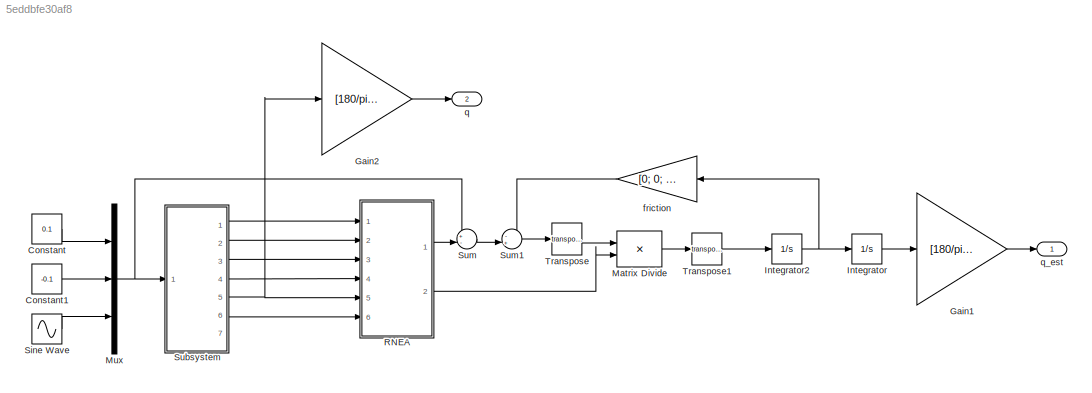
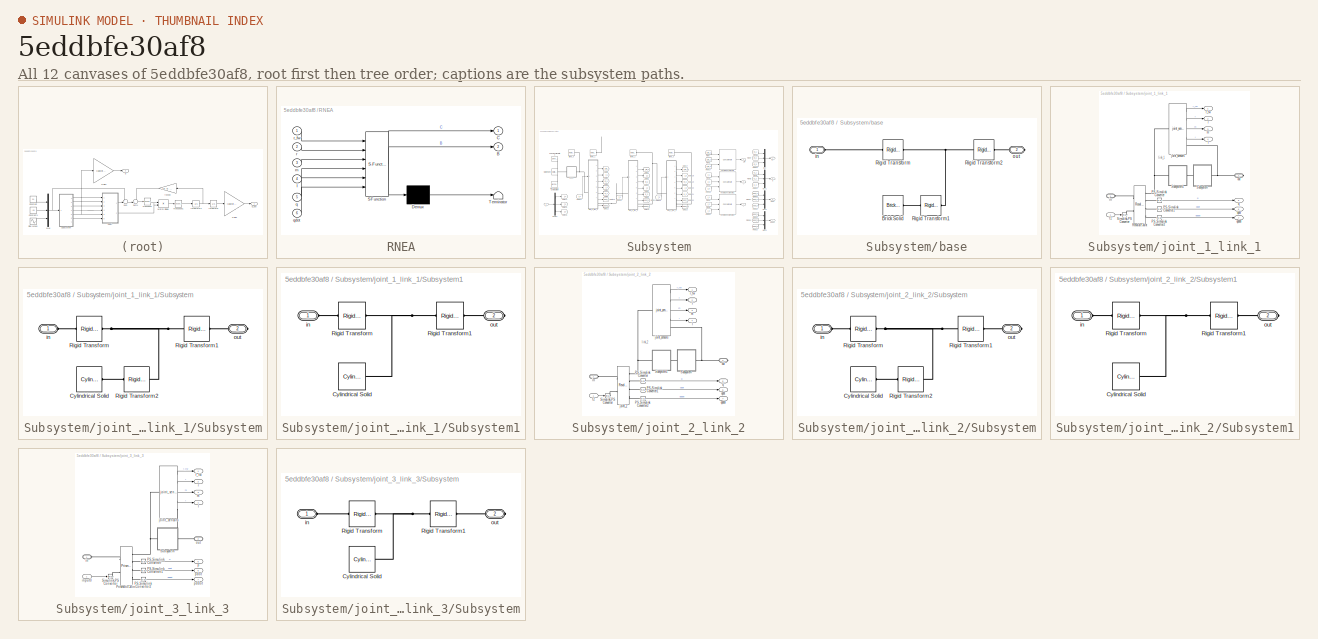
[diagram: thumbnail index - all 12 canvases of the model, root first then tree order]
MODEL slx_5eddbfe30af8
KIND model
CONFIG AbsTol = 1e-3
CONFIG EnableMultiTasking = on
CONFIG FixedStep = auto
CONFIG InitFcn = parameters;
CONFIG MaxStep = 0.01
CONFIG MinStep = auto
CONFIG RelTol = 1e-3
CONFIG SampleTimeConstraint = Unconstrained
CONFIG SolverName = VariableStepAuto
CONFIG StartTime = 0.0
CONFIG StopTime = 10.0
BLOCK [Constant] Constant
  Value = 0.1
BLOCK [Constant] Constant1
  Value = -0.1
BLOCK [Gain] Gain1
  Gain = [180/pi; 180/pi; 1]
BLOCK [Gain] Gain2
  Gain = [180/pi; 180/pi; 1]
BLOCK [Integrator] Integrator
  InitialCondition = [q1_init; q2_init; d3_init]
  Ports = [1, 1]
BLOCK [Integrator] Integrator2
  InitialCondition = [0; 0; 0]
  Ports = [1, 1]
BLOCK [Product] Matrix Divide
  Inputs = */
  Multiplication = Matrix(*)
  Ports = [2, 1]
BLOCK [Mux] Mux
  DisplayOption = bar
  Inputs = 3
  Ports = [3, 1]
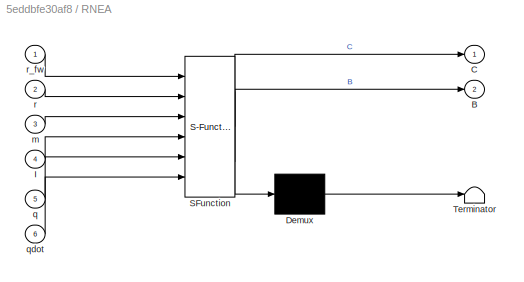
BLOCK [SubSystem] RNEA
  ErrorFcn = Stateflow.Translate.translate
  PermitHierarchicalResolution = ExplicitOnly
  Ports = [6, 2]
  RequestExecContextInheritance = off
  SFBlockType = MATLAB Function
  TreatAsAtomicUnit = on
BLOCK [Demux] RNEA/ Demux 
  Outputs = 1
  Ports = [1, 1]
BLOCK [S-Function] RNEA/ SFunction 
  EnableBusSupport = on
  FunctionName = sf_sfun
  Parameters = g
  PortCounts = [6 3]
  Ports = [6, 3]
  SFcnIsStateOwnerBlock = off
  SFunctionDeploymentMode = off
  Tag = Stateflow S-Function 1
BLOCK [Terminator] RNEA/ Terminator 
BLOCK [Outport] RNEA/B
  Port = 2
BLOCK [Outport] RNEA/C
BLOCK [Inport] RNEA/I
  Port = 4
BLOCK [Inport] RNEA/m
  Port = 3
BLOCK [Inport] RNEA/q
  Port = 5
BLOCK [Inport] RNEA/qdot
  Port = 6
BLOCK [Inport] RNEA/r
  Port = 2
BLOCK [Inport] RNEA/r_fw
BLOCK [Sin] Sine Wave
  Amplitude = 21/2
  Bias = 21
  Frequency = 6
  Ports = [0, 1]
  SampleTime = 0
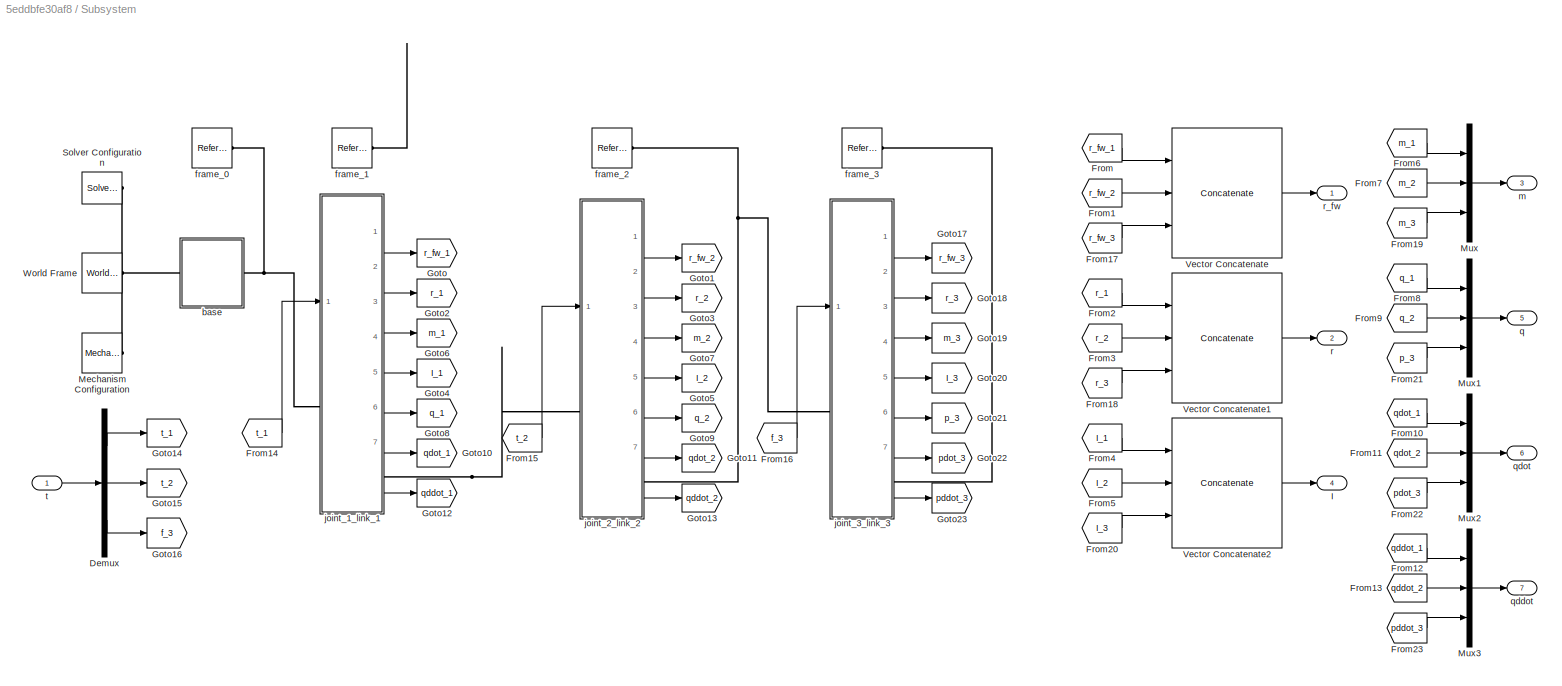
BLOCK [SubSystem] Subsystem
  Ports = [1, 7]
  RequestExecContextInheritance = off
BLOCK [Demux] Subsystem/Demux
  Outputs = 3
  Ports = [1, 3]
BLOCK [From] Subsystem/From
  GotoTag = r_fw_1
BLOCK [From] Subsystem/From1
  GotoTag = r_fw_2
BLOCK [From] Subsystem/From10
  GotoTag = qdot_1
BLOCK [From] Subsystem/From11
  GotoTag = qdot_2
BLOCK [From] Subsystem/From12
  GotoTag = qddot_1
BLOCK [From] Subsystem/From13
  GotoTag = qddot_2
BLOCK [From] Subsystem/From14
  GotoTag = t_1
BLOCK [From] Subsystem/From15
  GotoTag = t_2
BLOCK [From] Subsystem/From16
  GotoTag = f_3
BLOCK [From] Subsystem/From17
  GotoTag = r_fw_3
BLOCK [From] Subsystem/From18
  GotoTag = r_3
BLOCK [From] Subsystem/From19
  GotoTag = m_3
BLOCK [From] Subsystem/From2
  GotoTag = r_1
BLOCK [From] Subsystem/From20
  GotoTag = I_3
BLOCK [From] Subsystem/From21
  GotoTag = p_3
BLOCK [From] Subsystem/From22
  GotoTag = pdot_3
BLOCK [From] Subsystem/From23
  GotoTag = pddot_3
BLOCK [From] Subsystem/From3
  GotoTag = r_2
BLOCK [From] Subsystem/From4
  GotoTag = I_1
BLOCK [From] Subsystem/From5
  GotoTag = I_2
BLOCK [From] Subsystem/From6
  GotoTag = m_1
BLOCK [From] Subsystem/From7
  GotoTag = m_2
BLOCK [From] Subsystem/From8
  GotoTag = q_1
BLOCK [From] Subsystem/From9
  GotoTag = q_2
BLOCK [Goto] Subsystem/Goto
  GotoTag = r_fw_1
BLOCK [Goto] Subsystem/Goto1
  GotoTag = r_fw_2
BLOCK [Goto] Subsystem/Goto10
  GotoTag = qdot_1
BLOCK [Goto] Subsystem/Goto11
  GotoTag = qdot_2
BLOCK [Goto] Subsystem/Goto12
  GotoTag = qddot_1
BLOCK [Goto] Subsystem/Goto13
  GotoTag = qddot_2
BLOCK [Goto] Subsystem/Goto14
  GotoTag = t_1
BLOCK [Goto] Subsystem/Goto15
  GotoTag = t_2
BLOCK [Goto] Subsystem/Goto16
  GotoTag = f_3
BLOCK [Goto] Subsystem/Goto17
  GotoTag = r_fw_3
BLOCK [Goto] Subsystem/Goto18
  GotoTag = r_3
BLOCK [Goto] Subsystem/Goto19
  GotoTag = m_3
BLOCK [Goto] Subsystem/Goto2
  GotoTag = r_1
BLOCK [Goto] Subsystem/Goto20
  GotoTag = I_3
BLOCK [Goto] Subsystem/Goto21
  GotoTag = p_3
BLOCK [Goto] Subsystem/Goto22
  GotoTag = pdot_3
BLOCK [Goto] Subsystem/Goto23
  GotoTag = pddot_3
BLOCK [Goto] Subsystem/Goto3
  GotoTag = r_2
BLOCK [Goto] Subsystem/Goto4
  GotoTag = I_1
BLOCK [Goto] Subsystem/Goto5
  GotoTag = I_2
BLOCK [Goto] Subsystem/Goto6
  GotoTag = m_1
BLOCK [Goto] Subsystem/Goto7
  GotoTag = m_2
BLOCK [Goto] Subsystem/Goto8
  GotoTag = q_1
BLOCK [Goto] Subsystem/Goto9
  GotoTag = q_2
BLOCK [Outport] Subsystem/I
  Port = 4
BLOCK [Reference] Subsystem/Mechanism Configuration  REF=sm_lib/Utilities/Mechanism
Configuration
  Ports = [0, 0, 0, 0, 0, 0, 1]
  SourceBlock = sm_lib/Utilities/Mechanism\nConfiguration
  SourceProductBaseCode = MS
  SourceType = Mechanism\nConfiguration
BLOCK [Mux] Subsystem/Mux
  DisplayOption = bar
  Inputs = 3
  Ports = [3, 1]
BLOCK [Mux] Subsystem/Mux1
  DisplayOption = bar
  Inputs = 3
  Ports = [3, 1]
BLOCK [Mux] Subsystem/Mux2
  DisplayOption = bar
  Inputs = 3
  Ports = [3, 1]
BLOCK [Mux] Subsystem/Mux3
  DisplayOption = bar
  Inputs = 3
  Ports = [3, 1]
BLOCK [Reference] Subsystem/Solver Configuration  REF=nesl_utility/Solver
Configuration
  Ports = [0, 0, 0, 0, 0, 0, 1]
  SourceBlock = nesl_utility/Solver\nConfiguration
  SourceProductName = Utilities
  SourceType = Solver\nConfiguration
BLOCK [Concatenate] Subsystem/Vector Concatenate
  ConcatenateDimension = 2
  Mode = Multidimensional array
  NumInputs = 3
  Ports = [3, 1]
BLOCK [Concatenate] Subsystem/Vector Concatenate1
  ConcatenateDimension = 2
  Mode = Multidimensional array
  NumInputs = 3
  Ports = [3, 1]
BLOCK [Concatenate] Subsystem/Vector Concatenate2
  Mode = Multidimensional array
  NumInputs = 3
  Ports = [3, 1]
BLOCK [Reference] Subsystem/World Frame  REF=sm_lib/Frames and
Transforms/World Frame
  Ports = [0, 0, 0, 0, 0, 0, 1]
  SourceBlock = sm_lib/Frames and\nTransforms/World Frame
  SourceProductName = Multibody
  SourceType = World Frame
BLOCK [SubSystem] Subsystem/base
  Ports = [0, 0, 0, 0, 0, 1, 1]
  RequestExecContextInheritance = off
BLOCK [Reference] Subsystem/base/Brick Solid  REF=sm_lib/Body Elements/Brick Solid
  Ports = [0, 0, 0, 0, 0, 0, 1]
  SourceBlock = sm_lib/Body Elements/Brick Solid
  SourceProductBaseCode = MS
  SourceType = Brick Solid
BLOCK [Reference] Subsystem/base/Rigid Transform  REF=sm_lib/Frames and
Transforms/Rigid
Transform
  Ports = [0, 0, 0, 0, 0, 1, 1]
  SourceBlock = sm_lib/Frames and\nTransforms/Rigid\nTransform
  SourceProductBaseCode = MS
  SourceType = Rigid\nTransform
BLOCK [Reference] Subsystem/base/Rigid Transform1  REF=sm_lib/Frames and
Transforms/Rigid
Transform
  Ports = [0, 0, 0, 0, 0, 1, 1]
  SourceBlock = sm_lib/Frames and\nTransforms/Rigid\nTransform
  SourceProductBaseCode = MS
  SourceType = Rigid\nTransform
BLOCK [Reference] Subsystem/base/Rigid Transform2  REF=sm_lib/Frames and
Transforms/Rigid
Transform
  Ports = [0, 0, 0, 0, 0, 1, 1]
  SourceBlock = sm_lib/Frames and\nTransforms/Rigid\nTransform
  SourceProductBaseCode = MS
  SourceType = Rigid\nTransform
BLOCK [PMIOPort] Subsystem/base/in
  Side = Left
BLOCK [PMIOPort] Subsystem/base/out
  Port = 2
  Side = Right
BLOCK [Reference] Subsystem/frame_0  REF=sm_lib/Frames and
Transforms/Reference
Frame
  Ports = [0, 0, 0, 0, 0, 0, 1]
  SourceBlock = sm_lib/Frames and\nTransforms/Reference\nFrame
  SourceProductBaseCode = MS
  SourceType = Reference\nFrame
BLOCK [Reference] Subsystem/frame_1  REF=sm_lib/Frames and
Transforms/Reference
Frame
  Ports = [0, 0, 0, 0, 0, 0, 1]
  SourceBlock = sm_lib/Frames and\nTransforms/Reference\nFrame
  SourceProductBaseCode = MS
  SourceType = Reference\nFrame
BLOCK [Reference] Subsystem/frame_2  REF=sm_lib/Frames and
Transforms/Reference
Frame
  Ports = [0, 0, 0, 0, 0, 0, 1]
  SourceBlock = sm_lib/Frames and\nTransforms/Reference\nFrame
  SourceProductBaseCode = MS
  SourceType = Reference\nFrame
BLOCK [Reference] Subsystem/frame_3  REF=sm_lib/Frames and
Transforms/Reference
Frame
  Ports = [0, 0, 0, 0, 0, 0, 1]
  SourceBlock = sm_lib/Frames and\nTransforms/Reference\nFrame
  SourceProductBaseCode = MS
  SourceType = Reference\nFrame
BLOCK [SubSystem] Subsystem/joint_1_link_1
  PortSchema = {"entries":[{"content":{"sides":[{"content":{"connectorIds":["LConn1","In1"]},"type":"ConnectorPlacement.EquallySpacedRectSide","uuid":"eb1af6ed-9b87-46b9-8d3f-34ba78cb806b"},{"content":{"connectorIds":["RConn1","Out1","Out2","Out3","Out4","Out5","Out6","Out7"],"side":"RIGHT"},"type":"ConnectorPlacement.EquallySpacedRectSide","uuid":"1ba58fe6-d6b2-465a-832c-57fc388ac006"},{"content":{"connectorIds...<+444ch>
  Ports = [1, 7, 0, 0, 0, 1, 1]
  RequestExecContextInheritance = off
BLOCK [Outport] Subsystem/joint_1_link_1/I
  Port = 4
BLOCK [Reference] Subsystem/joint_1_link_1/PS-Simulink Converter  REF=nesl_utility/PS-Simulink
Converter
  Ports = [0, 1, 0, 0, 0, 1]
  SourceBlock = nesl_utility/PS-Simulink\nConverter
  SourceProductBaseCode = SS
  SourceType = PS-Simulink\nConverter
BLOCK [Reference] Subsystem/joint_1_link_1/PS-Simulink Converter1  REF=nesl_utility/PS-Simulink
Converter
  Ports = [0, 1, 0, 0, 0, 1]
  SourceBlock = nesl_utility/PS-Simulink\nConverter
  SourceProductBaseCode = SS
  SourceType = PS-Simulink\nConverter
BLOCK [Reference] Subsystem/joint_1_link_1/PS-Simulink Converter2  REF=nesl_utility/PS-Simulink
Converter
  Ports = [0, 1, 0, 0, 0, 1]
  SourceBlock = nesl_utility/PS-Simulink\nConverter
  SourceProductBaseCode = SS
  SourceType = PS-Simulink\nConverter
BLOCK [Reference] Subsystem/joint_1_link_1/Revolute Joint  REF=sm_lib/Joints/Revolute Joint
  Ports = [0, 0, 0, 0, 0, 2, 4]
  SourceBlock = sm_lib/Joints/Revolute Joint
  SourceProductBaseCode = MS
  SourceType = Revolute Joint
BLOCK [Reference] Subsystem/joint_1_link_1/Simulink-PS Converter  REF=nesl_utility/Simulink-PS
Converter
  Ports = [1, 0, 0, 0, 0, 0, 1]
  SourceBlock = nesl_utility/Simulink-PS\nConverter
  SourceProductBaseCode = SS
  SourceType = Simulink-PS\nConverter
BLOCK [SubSystem] Subsystem/joint_1_link_1/Subsystem
  Ports = [0, 0, 0, 0, 0, 1, 1]
  RequestExecContextInheritance = off
BLOCK [Reference] Subsystem/joint_1_link_1/Subsystem/Cylindrical Solid  REF=sm_lib/Body Elements/Cylindrical Solid
  Ports = [0, 0, 0, 0, 0, 0, 1]
  SourceBlock = sm_lib/Body Elements/Cylindrical Solid
  SourceProductBaseCode = MS
  SourceType = Cylindrical Solid
BLOCK [Reference] Subsystem/joint_1_link_1/Subsystem/Rigid Transform  REF=sm_lib/Frames and
Transforms/Rigid
Transform
  Ports = [0, 0, 0, 0, 0, 1, 1]
  SourceBlock = sm_lib/Frames and\nTransforms/Rigid\nTransform
  SourceProductBaseCode = MS
  SourceType = Rigid\nTransform
BLOCK [Reference] Subsystem/joint_1_link_1/Subsystem/Rigid Transform1  REF=sm_lib/Frames and
Transforms/Rigid
Transform
  Ports = [0, 0, 0, 0, 0, 1, 1]
  SourceBlock = sm_lib/Frames and\nTransforms/Rigid\nTransform
  SourceProductBaseCode = MS
  SourceType = Rigid\nTransform
BLOCK [Reference] Subsystem/joint_1_link_1/Subsystem/Rigid Transform2  REF=sm_lib/Frames and
Transforms/Rigid
Transform
  Ports = [0, 0, 0, 0, 0, 1, 1]
  SourceBlock = sm_lib/Frames and\nTransforms/Rigid\nTransform
  SourceProductBaseCode = MS
  SourceType = Rigid\nTransform
BLOCK [PMIOPort] Subsystem/joint_1_link_1/Subsystem/in
  Side = Left
BLOCK [PMIOPort] Subsystem/joint_1_link_1/Subsystem/out
  Port = 2
  Side = Right
BLOCK [SubSystem] Subsystem/joint_1_link_1/Subsystem1
  Ports = [0, 0, 0, 0, 0, 1, 1]
  RequestExecContextInheritance = off
BLOCK [Reference] Subsystem/joint_1_link_1/Subsystem1/Cylindrical Solid  REF=sm_lib/Body Elements/Cylindrical Solid
  Ports = [0, 0, 0, 0, 0, 0, 1]
  SourceBlock = sm_lib/Body Elements/Cylindrical Solid
  SourceProductBaseCode = MS
  SourceType = Cylindrical Solid
BLOCK [Reference] Subsystem/joint_1_link_1/Subsystem1/Rigid Transform  REF=sm_lib/Frames and
Transforms/Rigid
Transform
  Ports = [0, 0, 0, 0, 0, 1, 1]
  SourceBlock = sm_lib/Frames and\nTransforms/Rigid\nTransform
  SourceProductBaseCode = MS
  SourceType = Rigid\nTransform
BLOCK [Reference] Subsystem/joint_1_link_1/Subsystem1/Rigid Transform1  REF=sm_lib/Frames and
Transforms/Rigid
Transform
  Ports = [0, 0, 0, 0, 0, 1, 1]
  SourceBlock = sm_lib/Frames and\nTransforms/Rigid\nTransform
  SourceProductBaseCode = MS
  SourceType = Rigid\nTransform
BLOCK [PMIOPort] Subsystem/joint_1_link_1/Subsystem1/in
  Side = Left
BLOCK [PMIOPort] Subsystem/joint_1_link_1/Subsystem1/out
  Port = 2
  Side = Right
BLOCK [PMIOPort] Subsystem/joint_1_link_1/in
  Side = Left
BLOCK [Reference] Subsystem/joint_1_link_1/joint_sensors  REF=robot_arms_library/joint_sensors  (lib defined in slx_32957a7d959d)
  Ports = [0, 4, 0, 0, 0, 1, 1]
  SourceBlock = robot_arms_library/joint_sensors
BLOCK [Outport] Subsystem/joint_1_link_1/m
  Port = 3
BLOCK [PMIOPort] Subsystem/joint_1_link_1/out
  Port = 2
  Side = Right
BLOCK [Outport] Subsystem/joint_1_link_1/q
  Port = 5
BLOCK [Outport] Subsystem/joint_1_link_1/qddot
  Port = 7
BLOCK [Outport] Subsystem/joint_1_link_1/qdot
  Port = 6
BLOCK [Outport] Subsystem/joint_1_link_1/r
  Port = 2
BLOCK [Outport] Subsystem/joint_1_link_1/r_fw
BLOCK [Inport] Subsystem/joint_1_link_1/t1
BLOCK [SubSystem] Subsystem/joint_2_link_2
  PortSchema = {"entries":[{"content":{"sides":[{"content":{"connectorIds":["LConn1","In1"]},"type":"ConnectorPlacement.EquallySpacedRectSide","uuid":"eb1af6ed-9b87-46b9-8d3f-34ba78cb806b"},{"content":{"connectorIds":["RConn1","Out1","Out2","Out3","Out4","Out5","Out6","Out7"],"side":"RIGHT"},"type":"ConnectorPlacement.EquallySpacedRectSide","uuid":"1ba58fe6-d6b2-465a-832c-57fc388ac006"},{"content":{"connectorIds...<+444ch>
  Ports = [1, 7, 0, 0, 0, 1, 1]
  RequestExecContextInheritance = off
BLOCK [Outport] Subsystem/joint_2_link_2/I
  Port = 4
BLOCK [Reference] Subsystem/joint_2_link_2/PS-Simulink Converter  REF=nesl_utility/PS-Simulink
Converter
  Ports = [0, 1, 0, 0, 0, 1]
  SourceBlock = nesl_utility/PS-Simulink\nConverter
  SourceProductBaseCode = SS
  SourceType = PS-Simulink\nConverter
BLOCK [Reference] Subsystem/joint_2_link_2/PS-Simulink Converter1  REF=nesl_utility/PS-Simulink
Converter
  Ports = [0, 1, 0, 0, 0, 1]
  SourceBlock = nesl_utility/PS-Simulink\nConverter
  SourceProductBaseCode = SS
  SourceType = PS-Simulink\nConverter
BLOCK [Reference] Subsystem/joint_2_link_2/PS-Simulink Converter2  REF=nesl_utility/PS-Simulink
Converter
  Ports = [0, 1, 0, 0, 0, 1]
  SourceBlock = nesl_utility/PS-Simulink\nConverter
  SourceProductBaseCode = SS
  SourceType = PS-Simulink\nConverter
BLOCK [Reference] Subsystem/joint_2_link_2/Simulink-PS Converter  REF=nesl_utility/Simulink-PS
Converter
  Ports = [1, 0, 0, 0, 0, 0, 1]
  SourceBlock = nesl_utility/Simulink-PS\nConverter
  SourceProductBaseCode = SS
  SourceType = Simulink-PS\nConverter
BLOCK [SubSystem] Subsystem/joint_2_link_2/Subsystem
  Ports = [0, 0, 0, 0, 0, 1, 1]
  RequestExecContextInheritance = off
BLOCK [Reference] Subsystem/joint_2_link_2/Subsystem/Cylindrical Solid  REF=sm_lib/Body Elements/Cylindrical Solid
  Ports = [0, 0, 0, 0, 0, 0, 1]
  SourceBlock = sm_lib/Body Elements/Cylindrical Solid
  SourceProductBaseCode = MS
  SourceType = Cylindrical Solid
BLOCK [Reference] Subsystem/joint_2_link_2/Subsystem/Rigid Transform  REF=sm_lib/Frames and
Transforms/Rigid
Transform
  Ports = [0, 0, 0, 0, 0, 1, 1]
  SourceBlock = sm_lib/Frames and\nTransforms/Rigid\nTransform
  SourceProductBaseCode = MS
  SourceType = Rigid\nTransform
BLOCK [Reference] Subsystem/joint_2_link_2/Subsystem/Rigid Transform1  REF=sm_lib/Frames and
Transforms/Rigid
Transform
  Ports = [0, 0, 0, 0, 0, 1, 1]
  SourceBlock = sm_lib/Frames and\nTransforms/Rigid\nTransform
  SourceProductBaseCode = MS
  SourceType = Rigid\nTransform
BLOCK [Reference] Subsystem/joint_2_link_2/Subsystem/Rigid Transform2  REF=sm_lib/Frames and
Transforms/Rigid
Transform
  Ports = [0, 0, 0, 0, 0, 1, 1]
  SourceBlock = sm_lib/Frames and\nTransforms/Rigid\nTransform
  SourceProductBaseCode = MS
  SourceType = Rigid\nTransform
BLOCK [PMIOPort] Subsystem/joint_2_link_2/Subsystem/in
  Side = Left
BLOCK [PMIOPort] Subsystem/joint_2_link_2/Subsystem/out
  Port = 2
  Side = Right
BLOCK [SubSystem] Subsystem/joint_2_link_2/Subsystem1
  Ports = [0, 0, 0, 0, 0, 1, 1]
  RequestExecContextInheritance = off
BLOCK [Reference] Subsystem/joint_2_link_2/Subsystem1/Cylindrical Solid  REF=sm_lib/Body Elements/Cylindrical Solid
  Ports = [0, 0, 0, 0, 0, 0, 1]
  SourceBlock = sm_lib/Body Elements/Cylindrical Solid
  SourceProductBaseCode = MS
  SourceType = Cylindrical Solid
BLOCK [Reference] Subsystem/joint_2_link_2/Subsystem1/Rigid Transform  REF=sm_lib/Frames and
Transforms/Rigid
Transform
  Ports = [0, 0, 0, 0, 0, 1, 1]
  SourceBlock = sm_lib/Frames and\nTransforms/Rigid\nTransform
  SourceProductBaseCode = MS
  SourceType = Rigid\nTransform
BLOCK [Reference] Subsystem/joint_2_link_2/Subsystem1/Rigid Transform1  REF=sm_lib/Frames and
Transforms/Rigid
Transform
  Ports = [0, 0, 0, 0, 0, 1, 1]
  SourceBlock = sm_lib/Frames and\nTransforms/Rigid\nTransform
  SourceProductBaseCode = MS
  SourceType = Rigid\nTransform
BLOCK [PMIOPort] Subsystem/joint_2_link_2/Subsystem1/in
  Side = Left
BLOCK [PMIOPort] Subsystem/joint_2_link_2/Subsystem1/out
  Port = 2
  Side = Right
BLOCK [PMIOPort] Subsystem/joint_2_link_2/in
  Side = Left
BLOCK [Reference] Subsystem/joint_2_link_2/joint_2  REF=sm_lib/Joints/Revolute Joint
  Ports = [0, 0, 0, 0, 0, 2, 4]
  SourceBlock = sm_lib/Joints/Revolute Joint
  SourceProductBaseCode = MS
  SourceType = Revolute Joint
BLOCK [Reference] Subsystem/joint_2_link_2/joint_sensors  REF=robot_arms_library/joint_sensors  (lib defined in slx_32957a7d959d)
  Ports = [0, 4, 0, 0, 0, 1, 1]
  SourceBlock = robot_arms_library/joint_sensors
BLOCK [Outport] Subsystem/joint_2_link_2/m
  Port = 3
BLOCK [PMIOPort] Subsystem/joint_2_link_2/out
  Port = 2
  Side = Right
BLOCK [Outport] Subsystem/joint_2_link_2/q
  Port = 5
BLOCK [Outport] Subsystem/joint_2_link_2/qddot
  Port = 7
BLOCK [Outport] Subsystem/joint_2_link_2/qdot
  Port = 6
BLOCK [Outport] Subsystem/joint_2_link_2/r
  Port = 2
BLOCK [Outport] Subsystem/joint_2_link_2/r_fw
BLOCK [Inport] Subsystem/joint_2_link_2/t2
BLOCK [SubSystem] Subsystem/joint_3_link_3
  PortSchema = {"entries":[{"content":{"sides":[{"content":{"connectorIds":["LConn1","In1"]},"type":"ConnectorPlacement.EquallySpacedRectSide","uuid":"4da2bac3-9e46-40a4-b3d7-f3a1908a531a"},{"content":{"connectorIds":["RConn1","Out1","Out2","Out3","Out4","Out5","Out6","Out7"],"side":"RIGHT"},"type":"ConnectorPlacement.EquallySpacedRectSide","uuid":"d3f45e8b-aafa-452a-8f78-b53538b5243f"},{"content":{"connectorIds...<+444ch>
  Ports = [1, 7, 0, 0, 0, 1, 1]
  RequestExecContextInheritance = off
BLOCK [Outport] Subsystem/joint_3_link_3/I
  Port = 4
BLOCK [Reference] Subsystem/joint_3_link_3/PS-Simulink Converter  REF=nesl_utility/PS-Simulink
Converter
  Ports = [0, 1, 0, 0, 0, 1]
  SourceBlock = nesl_utility/PS-Simulink\nConverter
  SourceProductBaseCode = SS
  SourceType = PS-Simulink\nConverter
BLOCK [Reference] Subsystem/joint_3_link_3/PS-Simulink Converter1  REF=nesl_utility/PS-Simulink
Converter
  Ports = [0, 1, 0, 0, 0, 1]
  SourceBlock = nesl_utility/PS-Simulink\nConverter
  SourceProductBaseCode = SS
  SourceType = PS-Simulink\nConverter
BLOCK [Reference] Subsystem/joint_3_link_3/PS-Simulink Converter2  REF=nesl_utility/PS-Simulink
Converter
  Ports = [0, 1, 0, 0, 0, 1]
  SourceBlock = nesl_utility/PS-Simulink\nConverter
  SourceProductBaseCode = SS
  SourceType = PS-Simulink\nConverter
BLOCK [Reference] Subsystem/joint_3_link_3/Prismatic Joint  REF=sm_lib/Joints/Prismatic
Joint
  Ports = [0, 0, 0, 0, 0, 2, 4]
  SourceBlock = sm_lib/Joints/Prismatic\nJoint
  SourceProductBaseCode = MS
  SourceType = Prismatic\nJoint
BLOCK [Reference] Subsystem/joint_3_link_3/Simulink-PS Converter  REF=nesl_utility/Simulink-PS
Converter
  Ports = [1, 0, 0, 0, 0, 0, 1]
  SourceBlock = nesl_utility/Simulink-PS\nConverter
  SourceProductBaseCode = SS
  SourceType = Simulink-PS\nConverter
BLOCK [SubSystem] Subsystem/joint_3_link_3/Subsystem
  Ports = [0, 0, 0, 0, 0, 1, 1]
  RequestExecContextInheritance = off
BLOCK [Reference] Subsystem/joint_3_link_3/Subsystem/Cylindrical Solid  REF=sm_lib/Body Elements/Cylindrical Solid
  Ports = [0, 0, 0, 0, 0, 0, 1]
  SourceBlock = sm_lib/Body Elements/Cylindrical Solid
  SourceProductBaseCode = MS
  SourceType = Cylindrical Solid
BLOCK [Reference] Subsystem/joint_3_link_3/Subsystem/Rigid Transform  REF=sm_lib/Frames and
Transforms/Rigid
Transform
  Ports = [0, 0, 0, 0, 0, 1, 1]
  SourceBlock = sm_lib/Frames and\nTransforms/Rigid\nTransform
  SourceProductBaseCode = MS
  SourceType = Rigid\nTransform
BLOCK [Reference] Subsystem/joint_3_link_3/Subsystem/Rigid Transform1  REF=sm_lib/Frames and
Transforms/Rigid
Transform
  Ports = [0, 0, 0, 0, 0, 1, 1]
  SourceBlock = sm_lib/Frames and\nTransforms/Rigid\nTransform
  SourceProductBaseCode = MS
  SourceType = Rigid\nTransform
BLOCK [PMIOPort] Subsystem/joint_3_link_3/Subsystem/in
  Side = Left
BLOCK [PMIOPort] Subsystem/joint_3_link_3/Subsystem/out
  Port = 2
  Side = Right
BLOCK [PMIOPort] Subsystem/joint_3_link_3/in
  Side = Left
BLOCK [Inport] Subsystem/joint_3_link_3/input0
BLOCK [Reference] Subsystem/joint_3_link_3/joint_sensors  REF=robot_arms_library/joint_sensors  (lib defined in slx_32957a7d959d)
  Ports = [0, 4, 0, 0, 0, 1, 1]
  SourceBlock = robot_arms_library/joint_sensors
BLOCK [Outport] Subsystem/joint_3_link_3/m
  Port = 3
BLOCK [PMIOPort] Subsystem/joint_3_link_3/out
  Port = 2
  Side = Right
BLOCK [Outport] Subsystem/joint_3_link_3/p
  NameLocation = right
  Port = 5
BLOCK [Outport] Subsystem/joint_3_link_3/pddot
  NameLocation = right
  Port = 7
BLOCK [Outport] Subsystem/joint_3_link_3/pdot
  NameLocation = right
  Port = 6
BLOCK [Outport] Subsystem/joint_3_link_3/r
  Port = 2
BLOCK [Outport] Subsystem/joint_3_link_3/r_fw
BLOCK [Outport] Subsystem/m
  Port = 3
BLOCK [Outport] Subsystem/q
  Port = 5
BLOCK [Outport] Subsystem/qddot
  Port = 7
BLOCK [Outport] Subsystem/qdot
  Port = 6
BLOCK [Outport] Subsystem/r
  Port = 2
BLOCK [Outport] Subsystem/r_fw
BLOCK [Inport] Subsystem/t
BLOCK [Sum] Sum
  Inputs = +-|
  Ports = [2, 1]
BLOCK [Sum] Sum1
  Inputs = -+|
  Ports = [2, 1]
BLOCK [Math] Transpose
  Operator = transpose
  Ports = [1, 1]
BLOCK [Math] Transpose1
  Operator = transpose
  Ports = [1, 1]
BLOCK [Gain] friction
  Gain = [0; 0; 0]
BLOCK [Outport] q
  Port = 2
BLOCK [Outport] q_est
ANNOTATION Subsystem/joint_1_link_1: link_1
ANNOTATION Subsystem/joint_2_link_2: link_2
LINE Constant1:1 -> Mux:2
LINE Constant:1 -> Mux:1
LINE Gain1:1 -> q_est:1
LINE Gain2:1 -> q:1
NET Integrator2:1 -> Integrator:1, friction:1
LINE Integrator:1 -> Gain1:1
LINE Matrix Divide:1 -> Transpose1:1
NET Mux:1 -> Subsystem:1, Sum:1
LINE RNEA:1 -> Sum:2
LINE RNEA:2 -> Matrix Divide:2
LINE Sine Wave:1 -> Mux:3
LINE Subsystem/Demux:1 -> Subsystem/Goto14:1
LINE Subsystem/Demux:2 -> Subsystem/Goto15:1
LINE Subsystem/Demux:3 -> Subsystem/Goto16:1
LINE Subsystem/From10:1 -> Subsystem/Mux2:1
LINE Subsystem/From11:1 -> Subsystem/Mux2:2
LINE Subsystem/From12:1 -> Subsystem/Mux3:1
LINE Subsystem/From13:1 -> Subsystem/Mux3:2
LINE Subsystem/From14:1 -> Subsystem/joint_1_link_1:1
LINE Subsystem/From15:1 -> Subsystem/joint_2_link_2:1
LINE Subsystem/From16:1 -> Subsystem/joint_3_link_3:1
LINE Subsystem/From17:1 -> Subsystem/Vector Concatenate:3
LINE Subsystem/From18:1 -> Subsystem/Vector Concatenate1:3
LINE Subsystem/From19:1 -> Subsystem/Mux:3
LINE Subsystem/From1:1 -> Subsystem/Vector Concatenate:2
LINE Subsystem/From20:1 -> Subsystem/Vector Concatenate2:3
LINE Subsystem/From21:1 -> Subsystem/Mux1:3
LINE Subsystem/From22:1 -> Subsystem/Mux2:3
LINE Subsystem/From23:1 -> Subsystem/Mux3:3
LINE Subsystem/From2:1 -> Subsystem/Vector Concatenate1:1
LINE Subsystem/From3:1 -> Subsystem/Vector Concatenate1:2
LINE Subsystem/From4:1 -> Subsystem/Vector Concatenate2:1
LINE Subsystem/From5:1 -> Subsystem/Vector Concatenate2:2
LINE Subsystem/From6:1 -> Subsystem/Mux:1
LINE Subsystem/From7:1 -> Subsystem/Mux:2
LINE Subsystem/From8:1 -> Subsystem/Mux1:1
LINE Subsystem/From9:1 -> Subsystem/Mux1:2
LINE Subsystem/From:1 -> Subsystem/Vector Concatenate:1
LINE Subsystem/Mux1:1 -> Subsystem/q:1
LINE Subsystem/Mux2:1 -> Subsystem/qdot:1
LINE Subsystem/Mux3:1 -> Subsystem/qddot:1
LINE Subsystem/Mux:1 -> Subsystem/m:1
LINE Subsystem/Vector Concatenate1:1 -> Subsystem/r:1
LINE Subsystem/Vector Concatenate2:1 -> Subsystem/I:1
LINE Subsystem/Vector Concatenate:1 -> Subsystem/r_fw:1
LINE Subsystem/joint_1_link_1/PS-Simulink Converter1:1 -> Subsystem/joint_1_link_1/qdot:1
LINE Subsystem/joint_1_link_1/PS-Simulink Converter2:1 -> Subsystem/joint_1_link_1/qddot:1
LINE Subsystem/joint_1_link_1/PS-Simulink Converter:1 -> Subsystem/joint_1_link_1/q:1
LINE Subsystem/joint_1_link_1/joint_sensors:1 -> Subsystem/joint_1_link_1/r_fw:1
LINE Subsystem/joint_1_link_1/joint_sensors:2 -> Subsystem/joint_1_link_1/r:1
LINE Subsystem/joint_1_link_1/joint_sensors:3 -> Subsystem/joint_1_link_1/m:1
LINE Subsystem/joint_1_link_1/joint_sensors:4 -> Subsystem/joint_1_link_1/I:1
LINE Subsystem/joint_1_link_1/t1:1 -> Subsystem/joint_1_link_1/Simulink-PS Converter:1
LINE Subsystem/joint_1_link_1:1 -> Subsystem/Goto:1
LINE Subsystem/joint_1_link_1:2 -> Subsystem/Goto2:1
LINE Subsystem/joint_1_link_1:3 -> Subsystem/Goto6:1
LINE Subsystem/joint_1_link_1:4 -> Subsystem/Goto4:1
LINE Subsystem/joint_1_link_1:5 -> Subsystem/Goto8:1
LINE Subsystem/joint_1_link_1:6 -> Subsystem/Goto10:1
LINE Subsystem/joint_1_link_1:7 -> Subsystem/Goto12:1
LINE Subsystem/joint_2_link_2/PS-Simulink Converter1:1 -> Subsystem/joint_2_link_2/qdot:1
LINE Subsystem/joint_2_link_2/PS-Simulink Converter2:1 -> Subsystem/joint_2_link_2/qddot:1
LINE Subsystem/joint_2_link_2/PS-Simulink Converter:1 -> Subsystem/joint_2_link_2/q:1
LINE Subsystem/joint_2_link_2/joint_sensors:1 -> Subsystem/joint_2_link_2/r_fw:1
LINE Subsystem/joint_2_link_2/joint_sensors:2 -> Subsystem/joint_2_link_2/r:1
LINE Subsystem/joint_2_link_2/joint_sensors:3 -> Subsystem/joint_2_link_2/m:1
LINE Subsystem/joint_2_link_2/joint_sensors:4 -> Subsystem/joint_2_link_2/I:1
LINE Subsystem/joint_2_link_2/t2:1 -> Subsystem/joint_2_link_2/Simulink-PS Converter:1
LINE Subsystem/joint_2_link_2:1 -> Subsystem/Goto1:1
LINE Subsystem/joint_2_link_2:2 -> Subsystem/Goto3:1
LINE Subsystem/joint_2_link_2:3 -> Subsystem/Goto7:1
LINE Subsystem/joint_2_link_2:4 -> Subsystem/Goto5:1
LINE Subsystem/joint_2_link_2:5 -> Subsystem/Goto9:1
LINE Subsystem/joint_2_link_2:6 -> Subsystem/Goto11:1
LINE Subsystem/joint_2_link_2:7 -> Subsystem/Goto13:1
LINE Subsystem/joint_3_link_3/PS-Simulink Converter1:1 -> Subsystem/joint_3_link_3/pdot:1
LINE Subsystem/joint_3_link_3/PS-Simulink Converter2:1 -> Subsystem/joint_3_link_3/pddot:1
LINE Subsystem/joint_3_link_3/PS-Simulink Converter:1 -> Subsystem/joint_3_link_3/p:1
LINE Subsystem/joint_3_link_3/input0:1 -> Subsystem/joint_3_link_3/Simulink-PS Converter:1
LINE Subsystem/joint_3_link_3/joint_sensors:1 -> Subsystem/joint_3_link_3/r_fw:1
LINE Subsystem/joint_3_link_3/joint_sensors:2 -> Subsystem/joint_3_link_3/r:1
LINE Subsystem/joint_3_link_3/joint_sensors:3 -> Subsystem/joint_3_link_3/m:1
LINE Subsystem/joint_3_link_3/joint_sensors:4 -> Subsystem/joint_3_link_3/I:1
LINE Subsystem/joint_3_link_3:1 -> Subsystem/Goto17:1
LINE Subsystem/joint_3_link_3:2 -> Subsystem/Goto18:1
LINE Subsystem/joint_3_link_3:3 -> Subsystem/Goto19:1
LINE Subsystem/joint_3_link_3:4 -> Subsystem/Goto20:1
LINE Subsystem/joint_3_link_3:5 -> Subsystem/Goto21:1
LINE Subsystem/joint_3_link_3:6 -> Subsystem/Goto22:1
LINE Subsystem/joint_3_link_3:7 -> Subsystem/Goto23:1
LINE Subsystem/t:1 -> Subsystem/Demux:1
LINE Subsystem:1 -> RNEA:1
LINE Subsystem:2 -> RNEA:2
LINE Subsystem:3 -> RNEA:3
LINE Subsystem:4 -> RNEA:4
NET Subsystem:5 -> Gain2:1, RNEA:5
LINE Subsystem:6 -> RNEA:6
LINE Sum1:1 -> Transpose:1
LINE Sum:1 -> Sum1:2
LINE Transpose1:1 -> Integrator2:1
LINE Transpose:1 -> Matrix Divide:1
LINE friction:1 -> Sum1:1
PNET net1: Subsystem/Mechanism Configuration:RConn1 -- Subsystem/Solver Configuration:RConn1 -- Subsystem/World Frame:RConn1 -- Subsystem/base:LConn1
PLINE Subsystem/base/Brick Solid:RConn1 -- Subsystem/base/Rigid Transform1:LConn1
PNET net2: Subsystem/base/Rigid Transform1:RConn1 -- Subsystem/base/Rigid Transform2:LConn1 -- Subsystem/base/Rigid Transform:RConn1
PLINE Subsystem/base/Rigid Transform2:RConn1 -- Subsystem/base/out:RConn1
PLINE Subsystem/base/Rigid Transform:LConn1 -- Subsystem/base/in:RConn1
PNET net3: Subsystem/base:RConn1 -- Subsystem/frame_0:RConn1 -- Subsystem/joint_1_link_1:LConn1
PNET net4: Subsystem/frame_1:RConn1 -- Subsystem/joint_1_link_1:RConn1 -- Subsystem/joint_2_link_2:LConn1
PNET net5: Subsystem/frame_2:RConn1 -- Subsystem/joint_2_link_2:RConn1 -- Subsystem/joint_3_link_3:LConn1
PLINE Subsystem/frame_3:RConn1 -- Subsystem/joint_3_link_3:RConn1
PLINE Subsystem/joint_1_link_1/PS-Simulink Converter1:LConn1 -- Subsystem/joint_1_link_1/Revolute Joint:RConn3
PLINE Subsystem/joint_1_link_1/PS-Simulink Converter2:LConn1 -- Subsystem/joint_1_link_1/Revolute Joint:RConn4
PLINE Subsystem/joint_1_link_1/PS-Simulink Converter:LConn1 -- Subsystem/joint_1_link_1/Revolute Joint:RConn2
PLINE Subsystem/joint_1_link_1/Revolute Joint:LConn1 -- Subsystem/joint_1_link_1/in:RConn1
PLINE Subsystem/joint_1_link_1/Revolute Joint:LConn2 -- Subsystem/joint_1_link_1/Simulink-PS Converter:RConn1
PNET net6: Subsystem/joint_1_link_1/Revolute Joint:RConn1 -- Subsystem/joint_1_link_1/Subsystem1:LConn1 -- Subsystem/joint_1_link_1/joint_sensors:LConn1
PLINE Subsystem/joint_1_link_1/Subsystem/Cylindrical Solid:RConn1 -- Subsystem/joint_1_link_1/Subsystem/Rigid Transform2:LConn1
PNET net7: Subsystem/joint_1_link_1/Subsystem/Rigid Transform1:LConn1 -- Subsystem/joint_1_link_1/Subsystem/Rigid Transform2:RConn1 -- Subsystem/joint_1_link_1/Subsystem/Rigid Transform:RConn1
PLINE Subsystem/joint_1_link_1/Subsystem/Rigid Transform1:RConn1 -- Subsystem/joint_1_link_1/Subsystem/out:RConn1
PLINE Subsystem/joint_1_link_1/Subsystem/Rigid Transform:LConn1 -- Subsystem/joint_1_link_1/Subsystem/in:RConn1
PNET net8: Subsystem/joint_1_link_1/Subsystem1/Cylindrical Solid:RConn1 -- Subsystem/joint_1_link_1/Subsystem1/Rigid Transform1:LConn1 -- Subsystem/joint_1_link_1/Subsystem1/Rigid Transform:RConn1
PLINE Subsystem/joint_1_link_1/Subsystem1/Rigid Transform1:RConn1 -- Subsystem/joint_1_link_1/Subsystem1/out:RConn1
PLINE Subsystem/joint_1_link_1/Subsystem1/Rigid Transform:LConn1 -- Subsystem/joint_1_link_1/Subsystem1/in:RConn1
PLINE Subsystem/joint_1_link_1/Subsystem1:RConn1 -- Subsystem/joint_1_link_1/Subsystem:LConn1
PNET net9: Subsystem/joint_1_link_1/Subsystem:RConn1 -- Subsystem/joint_1_link_1/joint_sensors:RConn1 -- Subsystem/joint_1_link_1/out:RConn1
PLINE Subsystem/joint_2_link_2/PS-Simulink Converter1:LConn1 -- Subsystem/joint_2_link_2/joint_2:RConn3
PLINE Subsystem/joint_2_link_2/PS-Simulink Converter2:LConn1 -- Subsystem/joint_2_link_2/joint_2:RConn4
PLINE Subsystem/joint_2_link_2/PS-Simulink Converter:LConn1 -- Subsystem/joint_2_link_2/joint_2:RConn2
PLINE Subsystem/joint_2_link_2/Simulink-PS Converter:RConn1 -- Subsystem/joint_2_link_2/joint_2:LConn2
PLINE Subsystem/joint_2_link_2/Subsystem/Cylindrical Solid:RConn1 -- Subsystem/joint_2_link_2/Subsystem/Rigid Transform2:LConn1
PNET net10: Subsystem/joint_2_link_2/Subsystem/Rigid Transform1:LConn1 -- Subsystem/joint_2_link_2/Subsystem/Rigid Transform2:RConn1 -- Subsystem/joint_2_link_2/Subsystem/Rigid Transform:RConn1
PLINE Subsystem/joint_2_link_2/Subsystem/Rigid Transform1:RConn1 -- Subsystem/joint_2_link_2/Subsystem/out:RConn1
PLINE Subsystem/joint_2_link_2/Subsystem/Rigid Transform:LConn1 -- Subsystem/joint_2_link_2/Subsystem/in:RConn1
PNET net11: Subsystem/joint_2_link_2/Subsystem1/Cylindrical Solid:RConn1 -- Subsystem/joint_2_link_2/Subsystem1/Rigid Transform1:LConn1 -- Subsystem/joint_2_link_2/Subsystem1/Rigid Transform:RConn1
PLINE Subsystem/joint_2_link_2/Subsystem1/Rigid Transform1:RConn1 -- Subsystem/joint_2_link_2/Subsystem1/out:RConn1
PLINE Subsystem/joint_2_link_2/Subsystem1/Rigid Transform:LConn1 -- Subsystem/joint_2_link_2/Subsystem1/in:RConn1
PNET net12: Subsystem/joint_2_link_2/Subsystem1:LConn1 -- Subsystem/joint_2_link_2/joint_2:RConn1 -- Subsystem/joint_2_link_2/joint_sensors:LConn1
PLINE Subsystem/joint_2_link_2/Subsystem1:RConn1 -- Subsystem/joint_2_link_2/Subsystem:LConn1
PNET net13: Subsystem/joint_2_link_2/Subsystem:RConn1 -- Subsystem/joint_2_link_2/joint_sensors:RConn1 -- Subsystem/joint_2_link_2/out:RConn1
PLINE Subsystem/joint_2_link_2/in:RConn1 -- Subsystem/joint_2_link_2/joint_2:LConn1
PLINE Subsystem/joint_3_link_3/PS-Simulink Converter1:LConn1 -- Subsystem/joint_3_link_3/Prismatic Joint:RConn3
PLINE Subsystem/joint_3_link_3/PS-Simulink Converter2:LConn1 -- Subsystem/joint_3_link_3/Prismatic Joint:RConn4
PLINE Subsystem/joint_3_link_3/PS-Simulink Converter:LConn1 -- Subsystem/joint_3_link_3/Prismatic Joint:RConn2
PLINE Subsystem/joint_3_link_3/Prismatic Joint:LConn1 -- Subsystem/joint_3_link_3/in:RConn1
PLINE Subsystem/joint_3_link_3/Prismatic Joint:LConn2 -- Subsystem/joint_3_link_3/Simulink-PS Converter:RConn1
PNET net14: Subsystem/joint_3_link_3/Prismatic Joint:RConn1 -- Subsystem/joint_3_link_3/Subsystem:LConn1 -- Subsystem/joint_3_link_3/joint_sensors:LConn1
PNET net15: Subsystem/joint_3_link_3/Subsystem/Cylindrical Solid:RConn1 -- Subsystem/joint_3_link_3/Subsystem/Rigid Transform1:LConn1 -- Subsystem/joint_3_link_3/Subsystem/Rigid Transform:RConn1
PLINE Subsystem/joint_3_link_3/Subsystem/Rigid Transform1:RConn1 -- Subsystem/joint_3_link_3/Subsystem/out:RConn1
PLINE Subsystem/joint_3_link_3/Subsystem/Rigid Transform:LConn1 -- Subsystem/joint_3_link_3/Subsystem/in:RConn1
PNET net16: Subsystem/joint_3_link_3/Subsystem:RConn1 -- Subsystem/joint_3_link_3/joint_sensors:RConn1 -- Subsystem/joint_3_link_3/out:RConn1
note: NET lines group one-source signal fan-out (src -> all destinations, sorted); 1:1 wires keep LINE; PNET lines group multi-terminal physical nets as a canonical sorted terminal list (undirected conserving connections); 2-terminal nets keep the pairwise PLINE form
CHART RNEA states=1 transitions=1
  STATE_LABEL 'eML_blk_kernel()'
  STATE_LABEL "SCRIPT:\nfunction [C, B] = fcn(r_fw, r, m, I, q, qdot, g)\nn = length(q);\nr_bw = r_fw;\npddot_init = [0; 0; g];\nalpha = deg2rad([0; 0; 0]);\nkr = ones(n,1);\nzm = [zeros(2,n); ones(1,n)];\nIm = zeros(n,1);\njoint_type = ['r'; 'r'; 'p'];\ns = RNEA(joint_type, q, alpha, r, r_bw, kr, zm, m, I, Im);\n[B, C] = s.dynamic_matrices(qdot, pddot_init);\nend"
CHART  states=0 transitions=0
